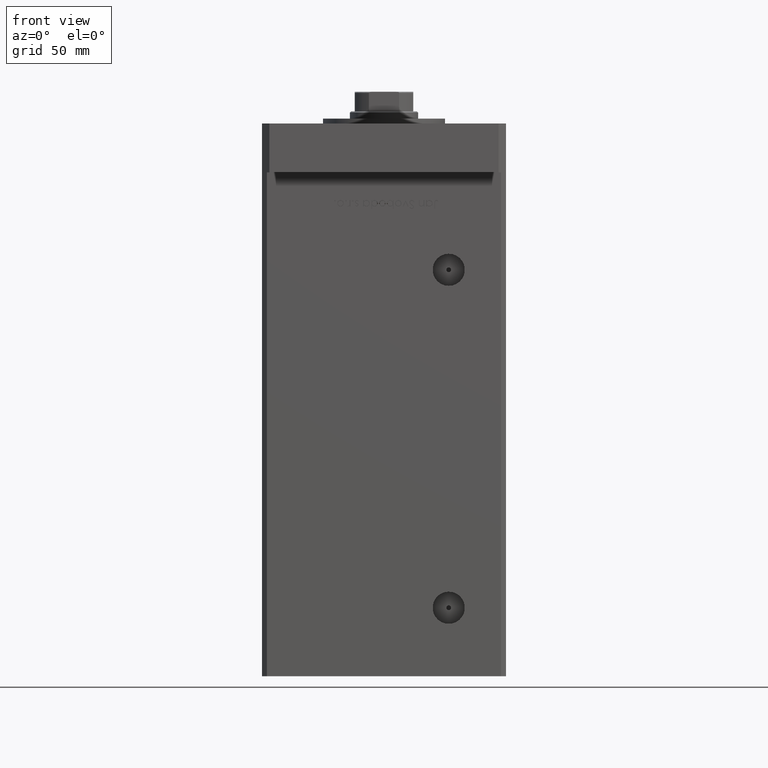
[diagram: clean part render]
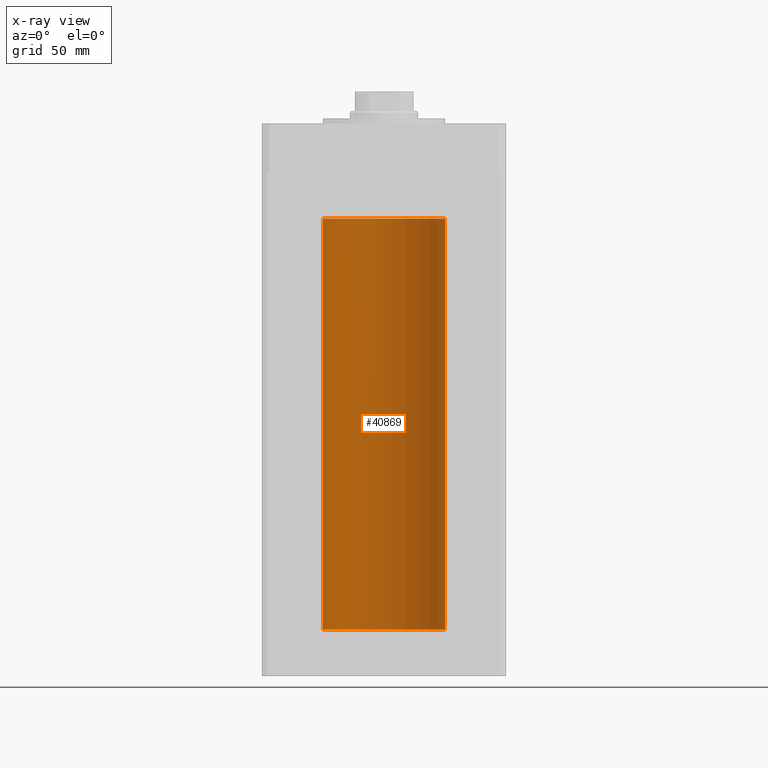
[diagram: x-ray — body ghosted, one internal face saturated and labeled with its STEP entity id]
A machine part, front view, then the same camera in x-ray: the body is ghosted and one INTERNAL B-rep face — a face not visible from any outside direction — is saturated and labeled: STEP entity #40869.
In plain terms, the highlighted cylindrical surface (partial cylindrical patch) has radius 25 mm, axis along (-0, -0, -1).
Its self-contained STEP definition (entity closure, byte-faithful):
#93 = VERTEX_POINT ( 'NONE', #10904 ) ;
#503 = VERTEX_POINT ( 'NONE', #12443 ) ;
#2557 = ORIENTED_EDGE ( 'NONE', *, *, #4971, .F. ) ;
#2922 = EDGE_CURVE ( 'NONE', #32594, #38210, #32115, .T. ) ;
#4971 = EDGE_CURVE ( 'NONE', #503, #32594, #22618, .T. ) ;
#5206 = CARTESIAN_POINT ( 'NONE',  ( 0.000000000000000000, 0.000000000000000000, 0.000000000000000000 ) ) ;
#8501 = CARTESIAN_POINT ( 'NONE',  ( 0.000000000000000000, 0.000000000000000000, 168.5000000000000000 ) ) ;
#8615 = AXIS2_PLACEMENT_3D ( 'NONE', #5206, #50185, #21849 ) ;
#8992 = CARTESIAN_POINT ( 'NONE',  ( -25.00000000000000000, 0.000000000000000000, 0.000000000000000000 ) ) ;
#10360 = DIRECTION ( 'NONE',  ( -0.000000000000000000, 0.000000000000000000, 1.000000000000000000 ) ) ;
#10904 = CARTESIAN_POINT ( 'NONE',  ( -25.00000000000000000, 0.000000000000000000, 168.5000000000000000 ) ) ;
#12443 = CARTESIAN_POINT ( 'NONE',  ( 25.00000000000000000, 3.061616997868383043E-15, 168.5000000000000000 ) ) ;
#13609 = ORIENTED_EDGE ( 'NONE', *, *, #31691, .T. ) ;
#14189 = DIRECTION ( 'NONE',  ( 1.000000000000000000, 0.000000000000000000, 0.000000000000000000 ) ) ;
#14419 = ORIENTED_EDGE ( 'NONE', *, *, #2922, .F. ) ;
#18427 = CIRCLE ( 'NONE', #52354, 25.00000000000000000 ) ;
#19730 = FACE_OUTER_BOUND ( 'NONE', #41541, .T. ) ;
#21849 = DIRECTION ( 'NONE',  ( 1.000000000000000000, 0.000000000000000000, 0.000000000000000000 ) ) ;
#22581 = CARTESIAN_POINT ( 'NONE',  ( 25.00000000000000000, 3.061616997868383043E-15, 0.000000000000000000 ) ) ;
#22618 = LINE ( 'NONE', #42783, #41765 ) ;
#23154 = DIRECTION ( 'NONE',  ( -0.000000000000000000, -0.000000000000000000, -1.000000000000000000 ) ) ;
#23295 = LINE ( 'NONE', #47543, #29993 ) ;
#26144 = ORIENTED_EDGE ( 'NONE', *, *, #52948, .T. ) ;
#28410 = DIRECTION ( 'NONE',  ( -0.000000000000000000, -0.000000000000000000, -1.000000000000000000 ) ) ;
#29350 = AXIS2_PLACEMENT_3D ( 'NONE', #8501, #28410, #40434 ) ;
#29993 = VECTOR ( 'NONE', #48091, 1000.000000000000000 ) ;
#31691 = EDGE_CURVE ( 'NONE', #93, #38210, #23295, .T. ) ;
#32115 = CIRCLE ( 'NONE', #8615, 25.00000000000000000 ) ;
#32594 = VERTEX_POINT ( 'NONE', #22581 ) ;
#36330 = CYLINDRICAL_SURFACE ( 'NONE', #29350, 25.00000000000000000 ) ;
#38210 = VERTEX_POINT ( 'NONE', #8992 ) ;
#38710 = CARTESIAN_POINT ( 'NONE',  ( 0.000000000000000000, 0.000000000000000000, 168.5000000000000000 ) ) ;
#40434 = DIRECTION ( 'NONE',  ( -1.000000000000000000, 0.000000000000000000, 0.000000000000000000 ) ) ;
#40869 = ADVANCED_FACE ( 'NONE', ( #19730 ), #36330, .F. ) ;
#41541 = EDGE_LOOP ( 'NONE', ( #2557, #26144, #13609, #14419 ) ) ;
#41765 = VECTOR ( 'NONE', #23154, 1000.000000000000000 ) ;
#42783 = CARTESIAN_POINT ( 'NONE',  ( 25.00000000000000000, 3.061616997868383043E-15, 168.5000000000000000 ) ) ;
#47543 = CARTESIAN_POINT ( 'NONE',  ( -25.00000000000000000, 0.000000000000000000, 168.5000000000000000 ) ) ;
#48091 = DIRECTION ( 'NONE',  ( -0.000000000000000000, -0.000000000000000000, -1.000000000000000000 ) ) ;
#50185 = DIRECTION ( 'NONE',  ( -0.000000000000000000, 0.000000000000000000, 1.000000000000000000 ) ) ;
#52354 = AXIS2_PLACEMENT_3D ( 'NONE', #38710, #10360, #14189 ) ;
#52948 = EDGE_CURVE ( 'NONE', #503, #93, #18427, .T. ) ;